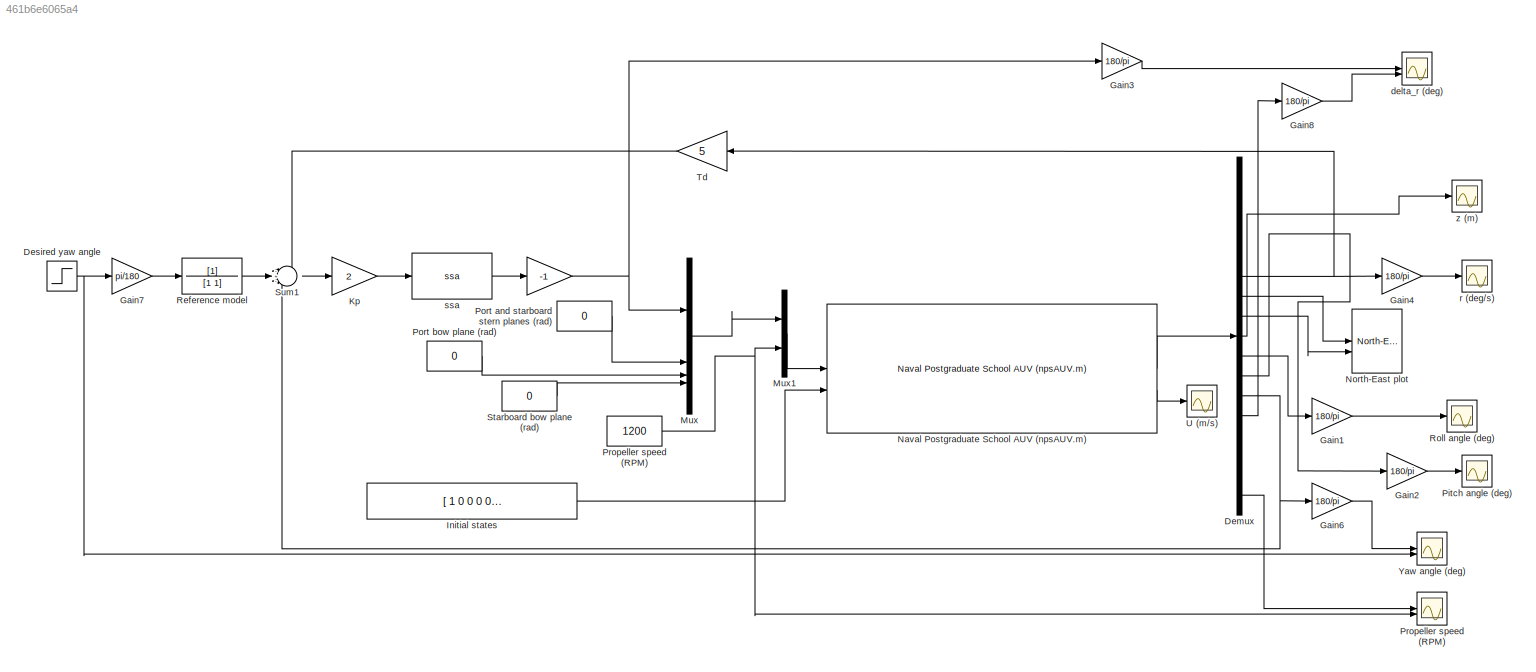
MODEL slx_461b6e6065a4
KIND model
CONFIG AbsTol = auto
CONFIG EnableMultiTasking = on
CONFIG FixedStep = 0.05
CONFIG MaxStep = auto
CONFIG MinStep = auto
CONFIG RelTol = 1e-3
CONFIG SampleTimeConstraint = Unconstrained
CONFIG SolverName = ode4
CONFIG StartTime = 0.0
CONFIG StopTime = 100
BLOCK [Gain]    
  Gain = -1
  OutDataTypeStr = Inherit: Same as input
  ParamDataTypeStr = Inherit: Same as input
  SaturateOnIntegerOverflow = on
BLOCK [Demux] Demux
  Outputs = 17
BLOCK [Step] Desired yaw angle
  After = 10
  SampleTime = 0
  Time = 10
BLOCK [Gain] Gain1
  Gain = 180/pi
BLOCK [Gain] Gain2
  Gain = 180/pi
BLOCK [Gain] Gain3
  Gain = 180/pi
BLOCK [Gain] Gain4
  Gain = 180/pi
BLOCK [Gain] Gain6
  Gain = 180/pi
BLOCK [Gain] Gain7
  Gain = pi/180
BLOCK [Gain] Gain8
  Gain = 180/pi
BLOCK [Constant] Initial states
  Value = [ 1 0 0 0 0 0 0 0 10 0 0 0 0 0 0 0 1000]
BLOCK [Gain] Kp
  Gain = 2
  NameLocation = top
  OutDataTypeStr = Inherit: Same as input
  ParamDataTypeStr = Inherit: Same as input
  SaturateOnIntegerOverflow = on
BLOCK [Mux] Mux
  DisplayOption = bar
BLOCK [Mux] Mux1
  DisplayOption = bar
  Inputs = 2
BLOCK [Reference] Naval Postgraduate School AUV (npsAUV.m)   REF=mssSimulink/Marine craft models/Naval Postgraduate School AUV (npsAUV.m)
  SourceBlock = mssSimulink/Marine craft models/Naval Postgraduate School AUV (npsAUV.m)
BLOCK [Reference] North-East plot    REF=mssSimulink/Utilities/Visualization/North-East plot  
  SourceBlock = mssSimulink/Utilities/Visualization/North-East plot
BLOCK [Scope] Pitch angle (deg)
  Floating = off
  NumInputPorts = 1
  ScopeSpecificationString = Simulink.scopes.TimeScopeBlockCfg('CurrentConfiguration', extmgr.ConfigurationSet(extmgr.Configuration('Core','General UI',true),extmgr.Configuration('Core','Source UI',true),extmgr.Configuration('Sources','WiredSimulink',true,'DataLoggingVariableName','ScopeData3'),extmgr.Configuration('Visuals','Time Domain',true,'SerializedDisplays',{struct('MinYLimReal','-0.10463','MaxYLimReal','0.01163','YLab...<+1507ch>
BLOCK [Constant] Port and starboard stern planes (rad)
  Value = 0
BLOCK [Constant] Port bow plane (rad)
  Value = 0
BLOCK [Constant] Propeller speed (RPM)
  Value = 1200
BLOCK [Scope] Propeller speed (RPM)  
  Floating = off
  NumInputPorts = 2
  ScopeSpecificationString = Simulink.scopes.TimeScopeBlockCfg('CurrentConfiguration', extmgr.ConfigurationSet(extmgr.Configuration('Core','General UI',true),extmgr.Configuration('Core','Source UI',true),extmgr.Configuration('Sources','WiredSimulink',true,'DataLoggingVariableName','ScopeData1'),extmgr.Configuration('Visuals','Time Domain',true,'SerializedDisplays',{struct('MinYLimReal','975.00000','MaxYLimReal','1225.00000','...<+1595ch>
BLOCK [TransferFcn] Reference model
  Denominator = [1 1]
BLOCK [Scope] Roll angle (deg)
  Floating = off
  NumInputPorts = 1
  ScopeSpecificationString = Simulink.scopes.TimeScopeBlockCfg('CurrentConfiguration', extmgr.ConfigurationSet(extmgr.Configuration('Core','General UI',true),extmgr.Configuration('Core','Source UI',true),extmgr.Configuration('Sources','WiredSimulink',true,'DataLoggingVariableName','ScopeData2'),extmgr.Configuration('Visuals','Time Domain',true,'SerializedDisplays',{struct('MinYLimReal','-0.24765','MaxYLimReal','0.02754','YLab...<+1507ch>
BLOCK [Constant] Starboard bow plane (rad)
  Value = 0
BLOCK [Sum] Sum1
  InputSameDT = on
  Inputs = -+-
  OutDataTypeStr = Inherit: Same as first input
  SaturateOnIntegerOverflow = on
BLOCK [Gain] Td
  Gain = 5
  NameLocation = top
  OutDataTypeStr = Inherit: Same as input
  ParamDataTypeStr = Inherit: Same as input
  SaturateOnIntegerOverflow = on
BLOCK [Scope] U (m//s)
  Floating = off
  NumInputPorts = 1
  ScopeSpecificationString = Simulink.scopes.TimeScopeBlockCfg('CurrentConfiguration', extmgr.ConfigurationSet(extmgr.Configuration('Core','General UI',true),extmgr.Configuration('Core','Source UI',true),extmgr.Configuration('Sources','WiredSimulink',true,'DataLoggingVariableName','ScopeData4'),extmgr.Configuration('Visuals','Time Domain',true,'SerializedDisplays',{struct('MinYLimReal','0.94137','MaxYLimReal','1.52763','YLabe...<+1544ch>
BLOCK [Scope] Yaw angle (deg)
  Floating = off
  NumInputPorts = 2
  ScopeSpecificationString = Simulink.scopes.TimeScopeBlockCfg('CurrentConfiguration', extmgr.ConfigurationSet(extmgr.Configuration('Core','General UI',true),extmgr.Configuration('Core','Source UI',true),extmgr.Configuration('Sources','WiredSimulink',true),extmgr.Configuration('Visuals','Time Domain',true,'SerializedDisplays',{struct('MinYLimReal','-1.25','MaxYLimReal','11.25','YLabelReal','','MinYLimMag','0.00000','MaxYLimMa...<+1518ch>
BLOCK [Scope] delta_r (deg)
  Floating = off
  NumInputPorts = 2
  ScopeSpecificationString = Simulink.scopes.TimeScopeBlockCfg('CurrentConfiguration', extmgr.ConfigurationSet(extmgr.Configuration('Core','General UI',true),extmgr.Configuration('Core','Source UI',true),extmgr.Configuration('Sources','WiredSimulink',true,'DataLoggingVariableName','ScopeData6'),extmgr.Configuration('Visuals','Time Domain',true,'SerializedDisplays',{struct('MinYLimReal','-14.2371','MaxYLimReal','1.73707','YLab...<+1654ch>
BLOCK [Scope] r (deg//s)
  Floating = off
  NumInputPorts = 1
  ScopeSpecificationString = Simulink.scopes.TimeScopeBlockCfg('CurrentConfiguration', extmgr.ConfigurationSet(extmgr.Configuration('Core','General UI',true),extmgr.Configuration('Core','Source UI',true),extmgr.Configuration('Sources','WiredSimulink',true,'DataLoggingVariableName','ScopeData5'),extmgr.Configuration('Visuals','Time Domain',true,'SerializedDisplays',{struct('MinYLimReal','-0.14055','MaxYLimReal','1.26218','YLab...<+1508ch>
BLOCK [Reference] ssa   REF=mssSimulink/Utilities/Math Operations/ssa
  SourceBlock = mssSimulink/Utilities/Math Operations/ssa
  SourceType = SubSystem
BLOCK [Scope] z (m)
  Floating = off
  NumInputPorts = 1
  ScopeSpecificationString = Simulink.scopes.TimeScopeBlockCfg('CurrentConfiguration', extmgr.ConfigurationSet(extmgr.Configuration('Core','General UI',true),extmgr.Configuration('Core','Source UI',true),extmgr.Configuration('Sources','WiredSimulink',true,'DataLoggingVariableName','ScopeData1'),extmgr.Configuration('Visuals','Time Domain',true,'SerializedDisplays',{struct('MinYLimReal','9.98783','MaxYLimReal','10.10954','YLab...<+1512ch>
NET    :1 -> Gain3:1, Mux:1
LINE Demux:10 -> Gain1:1
LINE Demux:11 -> Gain2:1
NET Demux:12 -> Gain6:1, Sum1:3
LINE Demux:13 -> Gain8:1
LINE Demux:17 -> Propeller speed (RPM)  :1
NET Demux:6 -> Gain4:1, Td:1
LINE Demux:7 -> North-East plot  :1
LINE Demux:8 -> North-East plot  :2
LINE Demux:9 -> z (m):1
NET Desired yaw angle:1 -> Gain7:1, Yaw angle (deg):2
LINE Gain1:1 -> Roll angle (deg):1
LINE Gain2:1 -> Pitch angle (deg):1
LINE Gain3:1 -> delta_r (deg):1
LINE Gain4:1 -> r (deg//s):1
LINE Gain6:1 -> Yaw angle (deg):1
LINE Gain7:1 -> Reference model:1
LINE Gain8:1 -> delta_r (deg):2
LINE Initial states:1 -> Naval Postgraduate School AUV (npsAUV.m) :2
LINE Kp:1 -> ssa :1
LINE Mux1:1 -> Naval Postgraduate School AUV (npsAUV.m) :1
LINE Mux:1 -> Mux1:1
LINE Naval Postgraduate School AUV (npsAUV.m) :1 -> Demux:1
LINE Naval Postgraduate School AUV (npsAUV.m) :2 -> U (m//s):1
LINE Port and starboard stern planes (rad):1 -> Mux:2
LINE Port bow plane (rad):1 -> Mux:3
NET Propeller speed (RPM):1 -> Mux1:2, Propeller speed (RPM)  :2
LINE Reference model:1 -> Sum1:2
LINE Starboard bow plane (rad):1 -> Mux:4
LINE Sum1:1 -> Kp:1
LINE Td:1 -> Sum1:1
LINE ssa :1 ->    :1
note: NET lines group one-source signal fan-out (src -> all destinations, sorted); 1:1 wires keep LINE
